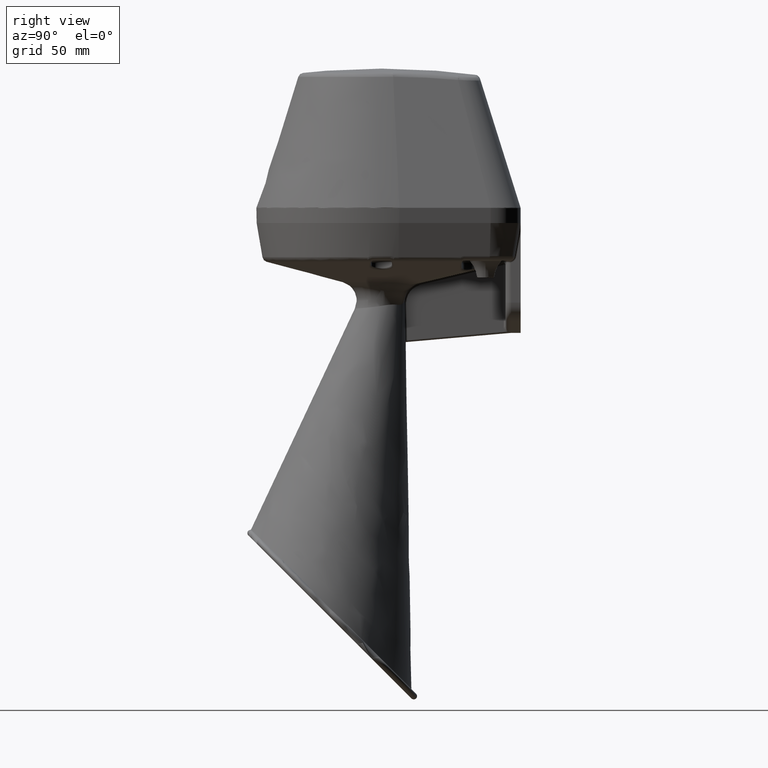
[diagram: clean part render]
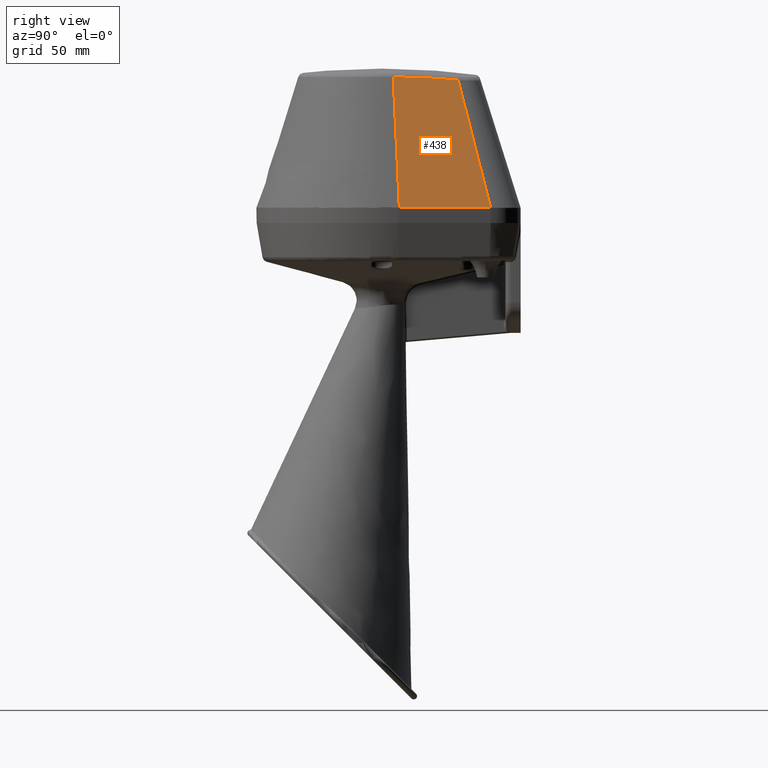
[diagram: same view with one face highlighted and labeled with its STEP entity id]
A machine part, right view. The second image highlights one B-rep face of the part: STEP entity #438.
In plain terms, the highlighted face is a freeform B-spline surface patch.
Its self-contained STEP definition (entity closure, byte-faithful):
#202=(
BOUNDED_SURFACE()
B_SPLINE_SURFACE(4,1,((#4513,#4514,#4515),(#4516,#4517,#4518),(#4519,#4520,
#4521),(#4522,#4523,#4524),(#4525,#4526,#4527)),.UNSPECIFIED.,.F.,.F.,.F.)
B_SPLINE_SURFACE_WITH_KNOTS((5,5),(2,1,2),(0.,1.),(0.,0.934208485936374,
1.),.UNSPECIFIED.)
GEOMETRIC_REPRESENTATION_ITEM()
RATIONAL_B_SPLINE_SURFACE(((1.02866897550093,1.02870312515866,1.02870312515866),
(1.02866897550093,1.02870312515866,1.02870312515866),(1.02866897550093,1.02870312515866,
1.02870312515866),(1.02866897550093,1.02870312515866,1.02870312515866),(1.02866897550093,
1.02870312515866,1.02870312515866)))
REPRESENTATION_ITEM('')
SURFACE()
);
#283=(
BOUNDED_CURVE()
B_SPLINE_CURVE(1,(#4375,#4376,#4377,#4378,#4379),.UNSPECIFIED.,.F.,.F.)
B_SPLINE_CURVE_WITH_KNOTS((2,1,1,1,2),(0.,0.115384615384615,0.834101859380521,
0.884615384615385,1.),.UNSPECIFIED.)
CURVE()
GEOMETRIC_REPRESENTATION_ITEM()
RATIONAL_B_SPLINE_CURVE((1.02866897550093,1.02866897550093,1.02870312515866,
1.02870312515866,1.02870312515866))
REPRESENTATION_ITEM('')
);
#284=(
BOUNDED_CURVE()
B_SPLINE_CURVE(4,(#4483,#4484,#4485,#4486,#4487),.UNSPECIFIED.,.F.,.F.)
B_SPLINE_CURVE_WITH_KNOTS((5,5),(0.,1.),.UNSPECIFIED.)
CURVE()
GEOMETRIC_REPRESENTATION_ITEM()
RATIONAL_B_SPLINE_CURVE((1.02866904695433,1.02866904695433,1.02866904695433,
1.02866904695433,1.02866904695433))
REPRESENTATION_ITEM('')
);
#285=(
BOUNDED_CURVE()
B_SPLINE_CURVE(1,(#4503,#4504,#4505,#4506,#4507),.UNSPECIFIED.,.F.,.F.)
B_SPLINE_CURVE_WITH_KNOTS((2,1,1,1,2),(0.,0.115384615384615,0.835905603529262,
0.884615384615385,1.),.UNSPECIFIED.)
CURVE()
GEOMETRIC_REPRESENTATION_ITEM()
RATIONAL_B_SPLINE_CURVE((1.02866897550093,1.02866897550093,1.02870312515866,
1.02870312515866,1.02870312515866))
REPRESENTATION_ITEM('')
);
#438=ADVANCED_FACE('',(#648),#202,.F.);
#648=FACE_OUTER_BOUND('',#830,.T.);
#830=EDGE_LOOP('',(#1307,#1308,#1309,#1310,#1311));
#1307=ORIENTED_EDGE('',*,*,#2502,.T.);
#1308=ORIENTED_EDGE('',*,*,#2503,.T.);
#1309=ORIENTED_EDGE('',*,*,#2504,.T.);
#1310=ORIENTED_EDGE('',*,*,#2505,.T.);
#1311=ORIENTED_EDGE('',*,*,#2500,.F.);
#2223=VERTEX_POINT('',#4374);
#2224=VERTEX_POINT('',#4380);
#2225=VERTEX_POINT('',#4488);
#2226=VERTEX_POINT('',#4502);
#2227=VERTEX_POINT('',#4508);
#2500=EDGE_CURVE('',#2223,#2224,#283,.T.);
#2502=EDGE_CURVE('',#2223,#2225,#284,.T.);
#2503=EDGE_CURVE('',#2225,#2226,#2956,.T.);
#2504=EDGE_CURVE('',#2226,#2227,#285,.T.);
#2505=EDGE_CURVE('',#2227,#2224,#2957,.T.);
#2956=B_SPLINE_CURVE_WITH_KNOTS('',3,(#4489,#4490,#4491,#4492,#4493,#4494,
#4495,#4496,#4497,#4498,#4499,#4500,#4501),.UNSPECIFIED.,.F.,.F.,(4,3,3,
3,4),(0.,0.0411195885764298,0.205597942882149,0.534554651493589,1.),.UNSPECIFIED.);
#2957=B_SPLINE_CURVE_WITH_KNOTS('',3,(#4509,#4510,#4511,#4512),.UNSPECIFIED.,
 .F.,.F.,(4,4),(0.,1.),.UNSPECIFIED.);
#4374=CARTESIAN_POINT('',(65.2657570646116,9.64461886340642,131.853259665075));
#4375=CARTESIAN_POINT('',(68.9171827897428,10.1903039731618,120.305805941313));
#4376=CARTESIAN_POINT('',(65.3127340930662,9.65163931702041,131.704697130056));
#4377=CARTESIAN_POINT('',(42.8617909946028,6.29647170003262,202.704697130056));
#4378=CARTESIAN_POINT('',(41.2839262049175,6.06066865055183,207.694616688283));
#4379=CARTESIAN_POINT('',(37.6797168166344,5.52203975770864,219.092751076036));
#4380=CARTESIAN_POINT('',(43.4464438191732,6.38384478790586,200.855761414418));
#4483=CARTESIAN_POINT('',(65.2657570649706,9.64461886346007,131.85325966394));
#4484=CARTESIAN_POINT('',(65.2657504876873,9.64466408420096,131.85325966394));
#4485=CARTESIAN_POINT('',(65.2657439104041,9.64470930494184,131.85325966394));
#4486=CARTESIAN_POINT('',(65.2657373331209,9.64475452568273,131.85325966394));
#4487=CARTESIAN_POINT('',(65.2657307558376,9.64479974642362,131.85325966394));
#4488=CARTESIAN_POINT('',(65.2657307561968,9.64479974647587,131.853259662804));
#4489=CARTESIAN_POINT('',(65.2657307561968,9.64479974647587,131.853259662804));
#4490=CARTESIAN_POINT('',(65.1697765388405,10.3045248654363,131.853254312588));
#4491=CARTESIAN_POINT('',(65.0738223213178,10.9642499843725,131.853248962227));
#4492=CARTESIAN_POINT('',(64.9778681036288,11.6239751032846,131.853243611718));
#4493=CARTESIAN_POINT('',(64.5940512328727,14.2628755789327,131.853222209686));
#4494=CARTESIAN_POINT('',(64.2102343594553,16.9017760541938,131.853200805315));
#4495=CARTESIAN_POINT('',(63.8264174833752,19.5406765290675,131.853179398606));
#4496=CARTESIAN_POINT('',(63.058783731215,24.8184774788151,131.853136585189));
#4497=CARTESIAN_POINT('',(62.2911499684042,30.0962784270134,131.85309376242));
#4498=CARTESIAN_POINT('',(61.5235161949324,35.3740793736612,131.853050930304));
#4499=CARTESIAN_POINT('',(60.4373806641618,42.8417121571475,131.852990326558));
#4500=CARTESIAN_POINT('',(59.3512451205358,50.3093449387638,131.852929677191));
#4501=CARTESIAN_POINT('',(58.2651095470497,57.7769777160371,131.852869036034));
#4502=CARTESIAN_POINT('',(58.2651095470497,57.7769777160371,131.852869036034));
#4503=CARTESIAN_POINT('',(61.5493468775264,60.7048022012821,120.334341797481));
#4504=CARTESIAN_POINT('',(58.3073572836625,57.8146406329503,131.704697130056));
#4505=CARTESIAN_POINT('',(38.0633759451995,39.7675818252385,202.704697130056));
#4506=CARTESIAN_POINT('',(36.6948562478838,38.5475769732264,207.504390277609));
#4507=CARTESIAN_POINT('',(33.4530818978442,35.6576072899734,218.873990703762));
#4508=CARTESIAN_POINT('',(39.0683978701044,40.6635365032513,199.179868911969));
#4509=CARTESIAN_POINT('',(39.068396431764,40.6635352210028,199.179873956538));
#4510=CARTESIAN_POINT('',(40.3476936413731,29.2500445557184,200.29493856712));
#4511=CARTESIAN_POINT('',(41.8084788218167,17.8059660936391,200.854540753224));
#4512=CARTESIAN_POINT('',(43.446443825866,6.38384478890607,200.855761393253));
#4513=CARTESIAN_POINT('',(58.3073572836625,57.8146406329503,131.704697130056));
#4514=CARTESIAN_POINT('',(38.0633759451995,39.7675818252385,202.704697130056));
#4515=CARTESIAN_POINT('',(36.6377434565753,38.4966621908926,207.704697130056));
#4516=CARTESIAN_POINT('',(60.0587014860134,45.7738903039679,131.704697130056));
#4517=CARTESIAN_POINT('',(39.2629797075503,31.399804293937,202.704697130056));
#4518=CARTESIAN_POINT('',(37.7984922583628,30.3875447157658,207.704697130056));
#4519=CARTESIAN_POINT('',(61.8100456883643,33.7331399749854,131.704697130056));
#4520=CARTESIAN_POINT('',(40.4625834699011,23.0320267626356,202.704697130056));
#4521=CARTESIAN_POINT('',(38.9592410601502,22.2784272406391,207.704697130056));
#4522=CARTESIAN_POINT('',(63.5613898907152,21.6923896460029,131.704697130056));
#4523=CARTESIAN_POINT('',(41.662187232252,14.6642492313341,202.704697130056));
#4524=CARTESIAN_POINT('',(40.1199898619376,14.1693097655123,207.704697130056));
#4525=CARTESIAN_POINT('',(65.3127340930662,9.65163931702041,131.704697130056));
#4526=CARTESIAN_POINT('',(42.8617909946028,6.29647170003262,202.704697130056));
#4527=CARTESIAN_POINT('',(41.2807386637251,6.06019229038559,207.704697130056));